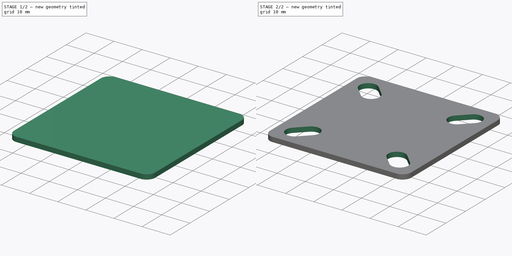
[diagram: build sequence overview — one tinted view per stage of 2, left to right]
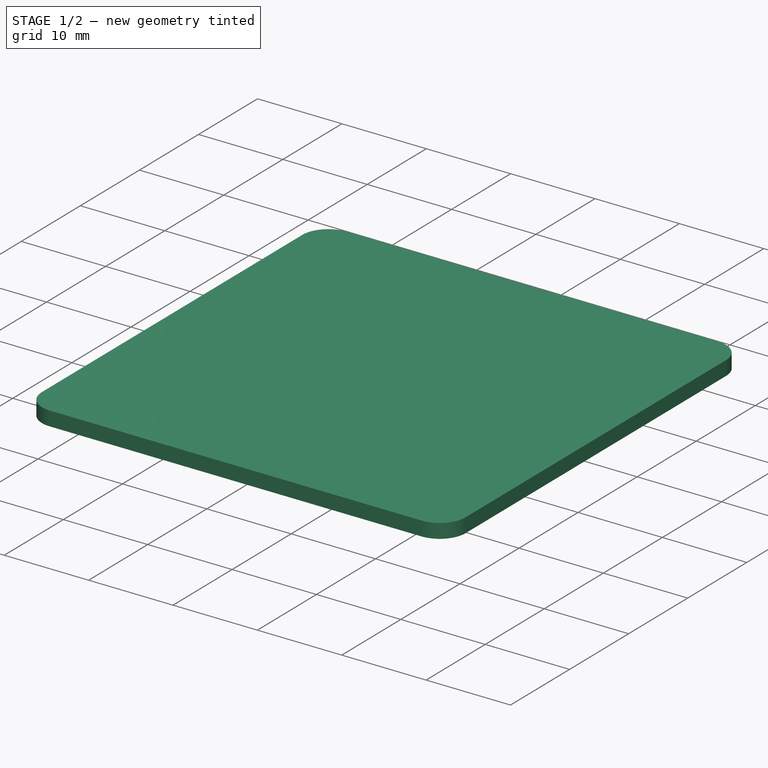
[diagram: stage 1 of 2 — iso view after this stage's code; geometry added in this stage tinted green]
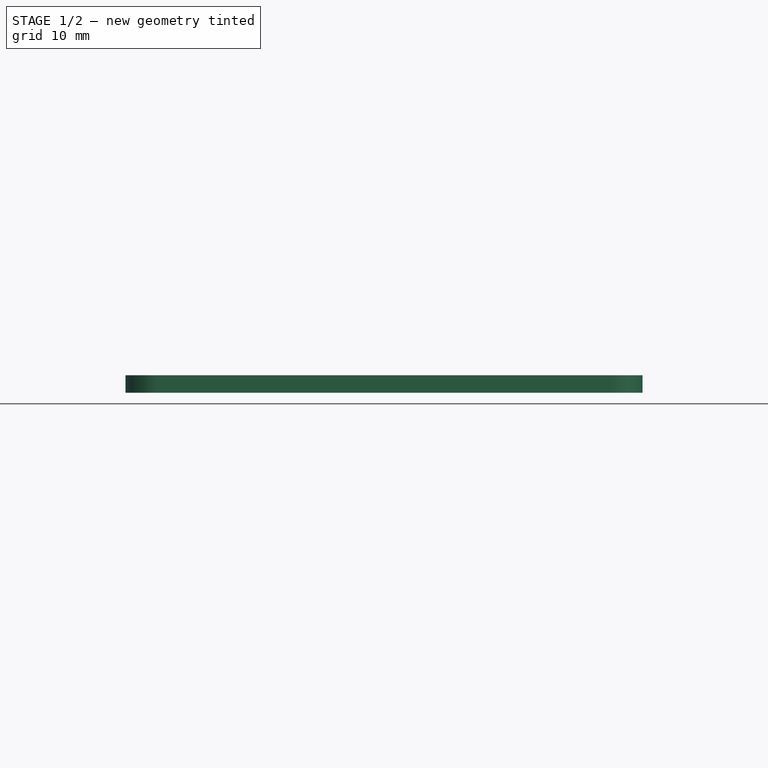
[diagram: stage 1 of 2 — front view after this stage's code; geometry added in this stage tinted green]
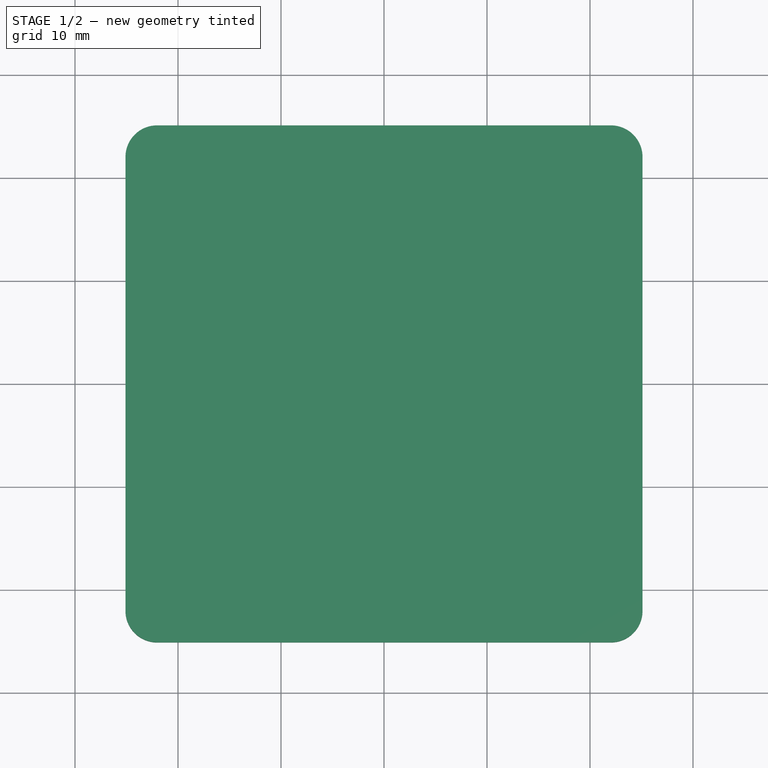
[diagram: stage 1 of 2 — top view after this stage's code; geometry added in this stage tinted green]
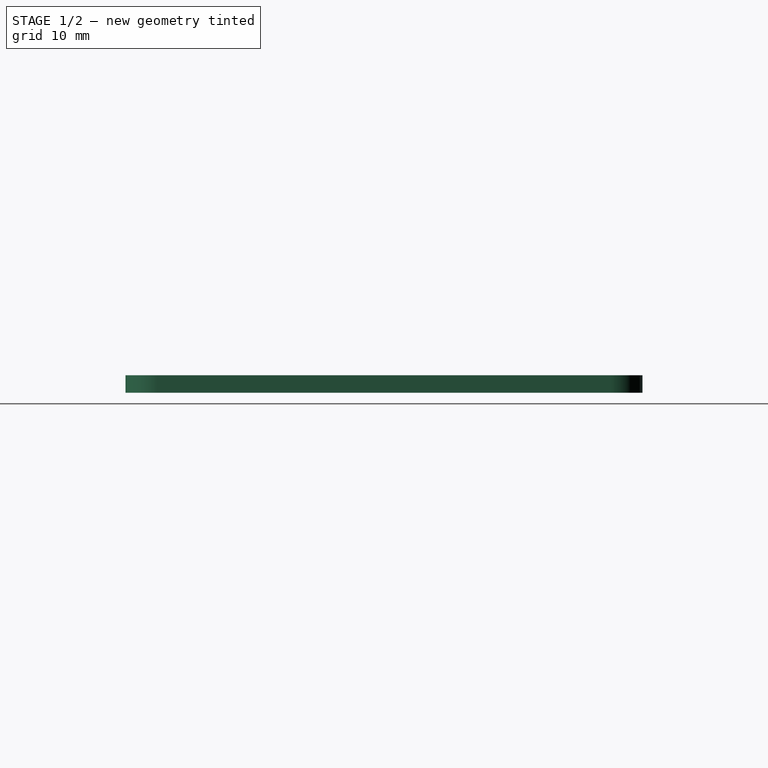
[diagram: stage 1 of 2 — right view after this stage's code; geometry added in this stage tinted green]
FCSTD DOCUMENT  (FreeCAD 1.1R38827 (Git))
Label: wheel50mm
License: All rights reserved
LicenseURL: http://en.wikipedia.org/wiki/All_rights_reserved
objects: Sketcher::SketchObject×4, Part::FeaturePython×3, Part::Part2DObjectPython×1, PartDesign::SubShapeBinder×1, PartDesign::Pad×1, PartDesign::Pocket×1, PartDesign::Body×1, TechDraw::DrawSVGTemplate×1, TechDraw::DrawViewPart×1, TechDraw::DrawPage×1
note: 20 computed .brp shape members not serialized (recipe doc carries the construction recipe); baked Part::Feature solids carry a one-line shape summary decoded from their .brp

FEATURE [Sketcher::SketchObject] Sketch
  ArcFitTolerance = 0
  FullyConstrained = true
  MakeInternals = false
  sketch-geometry (6):
    g0: ArcOfCircle CenterX=2.45 CenterY=0 CenterZ=0 NormalX=0 NormalY=0 NormalZ=1 AngleXU=0 Radius=3.05 StartAngle=4.71239 EndAngle=7.85398
    g1: ArcOfCircle CenterX=-2.45 CenterY=0 CenterZ=0 NormalX=0 NormalY=0 NormalZ=1 AngleXU=0 Radius=3.05 StartAngle=1.5708 EndAngle=4.71239
    g2: LineSegment StartX=2.45 StartY=3.05 StartZ=0 EndX=-2.45 EndY=3.05 EndZ=0
    g3: LineSegment StartX=-2.45 StartY=-3.05 StartZ=0 EndX=2.45 EndY=-3.05 EndZ=0
    g4: GeomPoint [constr] X=-5.5 Y=0 Z=0
    g5: GeomPoint [constr] X=5.5 Y=0 Z=0
  constraints (13):
    c: Tangent(g0,g2) = -1.5708
    c: Tangent(g2,g1) = -1.5708
    c: Tangent(g1,g3) = -1.5708
    c: Tangent(g3,g0) = -1.5708
    c: Equal(g0,g1)
    c: PointOnObject(g0,g-1)
    c: PointOnObject(g4,g1)
    c: DistanceY(g1,g1) = 6.1
    c: PointOnObject(g4,g-1)
    c: PointOnObject(g5,g0)
    c: PointOnObject(g5,g-1)
    c: DistanceX(g1,g0) = 4.9
    c: Symmetric(g1,g0,g-2)
FEATURE [Sketcher::SketchObject] Sketch001
  ArcFitTolerance = 0
  AttachmentSupport = -> [XY_Plane]
  FullyConstrained = true
  MakeInternals = false
  MapMode = 5
  sketch-geometry (13):
    g0: ArcOfCircle CenterX=-22.0297 CenterY=-22.0297 CenterZ=0 NormalX=0 NormalY=0 NormalZ=1 AngleXU=0 Radius=3.0703 StartAngle=3.14159 EndAngle=4.71239
    g1: LineSegment StartX=-25.1 StartY=-22.0297 StartZ=0 EndX=-25.1 EndY=22.0297 EndZ=0
    g2: ArcOfCircle CenterX=-22.0297 CenterY=22.0297 CenterZ=0 NormalX=0 NormalY=0 NormalZ=1 AngleXU=0 Radius=3.0703 StartAngle=1.5708 EndAngle=3.14159
    g3: LineSegment StartX=-22.0297 StartY=25.1 StartZ=0 EndX=22.0297 EndY=25.1 EndZ=0
    g4: ArcOfCircle CenterX=22.0297 CenterY=22.0297 CenterZ=0 NormalX=0 NormalY=0 NormalZ=1 AngleXU=0 Radius=3.0703 StartAngle=-5.95e-14 EndAngle=1.5708
    g5: LineSegment StartX=25.1 StartY=22.0297 StartZ=0 EndX=25.1 EndY=-22.0297 EndZ=0
    g6: ArcOfCircle CenterX=22.0297 CenterY=-22.0297 CenterZ=0 NormalX=0 NormalY=0 NormalZ=1 AngleXU=0 Radius=3.0703 StartAngle=4.71239 EndAngle=6.28319
    g7: LineSegment StartX=22.0297 StartY=-25.1 StartZ=0 EndX=-22.0297 EndY=-25.1 EndZ=0
    g8: GeomPoint [constr] X=-25.1 Y=-25.1 Z=0
    g9: GeomPoint [constr] X=25.1 Y=25.1 Z=0
    g10: GeomPoint [constr] X=24.2007 Y=24.2007 Z=0
    g11: GeomPoint [constr] X=-24.2007 Y=-24.2007 Z=0
    g12: LineSegment [constr] StartX=-25.1 StartY=-25.1 StartZ=0 EndX=25.1 EndY=25.1 EndZ=0
  constraints (29):
    c: Tangent(g0,g1) = 1.5708
    c: Tangent(g1,g2) = 1.5708
    c: Tangent(g2,g3) = 1.5708
    c: Tangent(g3,g4) = 1.5708
    c: Tangent(g4,g5) = 1.5708
    c: Tangent(g5,g6) = 1.5708
    c: Tangent(g6,g7) = 1.5708
    c: Tangent(g7,g0) = 1.5708
    c: Horizontal(g3)
    c: Horizontal(g7)
    c: Vertical(g1)
    c: Vertical(g5)
    c: Equal(g0,g2)
    c: Equal(g2,g4)
    c: Equal(g4,g6)
    c: PointOnObject(g8,g1)
    c: PointOnObject(g8,g7)
    c: PointOnObject(g9,g3)
    c: PointOnObject(g9,g5)
    c: Symmetric(g4,g0,g-1)
    c: Equal(g5,g3)
    c: DistanceY(g9) = 25.1
    c: PointOnObject(g10,g4)
    c: PointOnObject(g11,g0)
    c: Coincident(g12,g8)
    c: Coincident(g12,g9)
    c: PointOnObject(g11,g12)
    c: PointOnObject(g10,g12)
    c: Distance(g11,g10) = 68.45
FEATURE [Part::Part2DObjectPython] PolarArray  # Draft 2D object (typed FeaturePython)
  Alignment = 0
  AttacherType = Attacher::AttachEngine3D
  CellStart = A1
  Count = 4
  DistributionLaw = 0
  EndInclusive = false
  ExposePlacement = false
  FlipX = false
  FlipZ = false
  GeneratorMode = 0
  MarkerShape = 1
  MarkerSize = 0
  NumElements = 4
  OrientMode = 2
  Placement = pos=(0,0,0) rot=(0,0,1;0.785398rad)
  Radius = 24
  Reverse = false
  SpanEnd = 360
  SpanStart = 0
  Step = 90
  Type = lattice2PolarArray2.PolarArray
  UseArcRadius = false
  UseArcRange = 0
  VSGVersion = 1
  Values = 0.0 | 90.0 | 180.0 | 270.0
  ValuesSource = 2
  isLattice = 1
  expr: Radius = (18.5 + 29.5) / 2
FEATURE [Part::FeaturePython] Populate  label="slot"  # WARN: FeaturePython — macro-defined, semantics opaque (R4)
  Copying = 0
  ExposePlacement = false
  MarkerShape = 1
  MarkerSize = 0
  NumElements = 0
  Object = -> Sketch
  OutputCompounding = 1
  PlacementsTo = -> PolarArray
  Referencing = 0
  Type = lattice2PopulateCopies.LatticePopulateCopies
  isLattice = 0
FEATURE [PartDesign::SubShapeBinder] Binder
  BindCopyOnChange = 0
  BindMode = 0
  ClaimChildren = false
  Context = -> Body [Binder.]
  Fuse = false
  MakeFace = true
  OffsetFill = false
  OffsetIntersection = false
  OffsetJoinType = 0
  OffsetOpenResult = false
  PartialLoad = false
  Relative = true
  Support = -> [Populate]
  _Version = 2
FEATURE [PartDesign::Pad] Pad
  Direction = (0,0,1)
  Length = 1.7
  Length2 = 10
  Profile = -> Sketch001
  ReferenceAxis = -> Sketch001 [N_Axis]
  Suppressed = false
  Type = 0
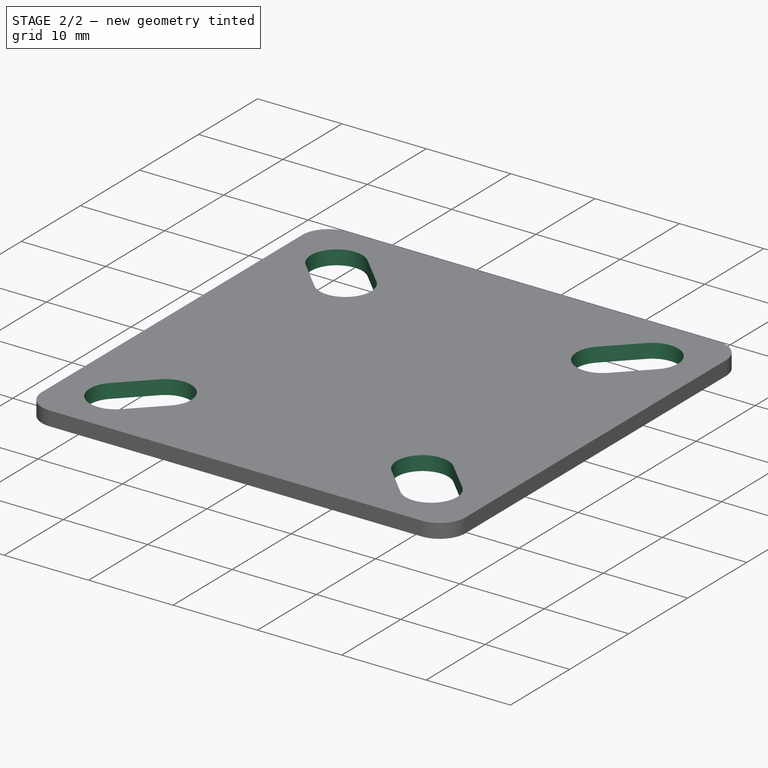
[diagram: stage 2 of 2 — iso view after this stage's code; geometry added in this stage tinted green]
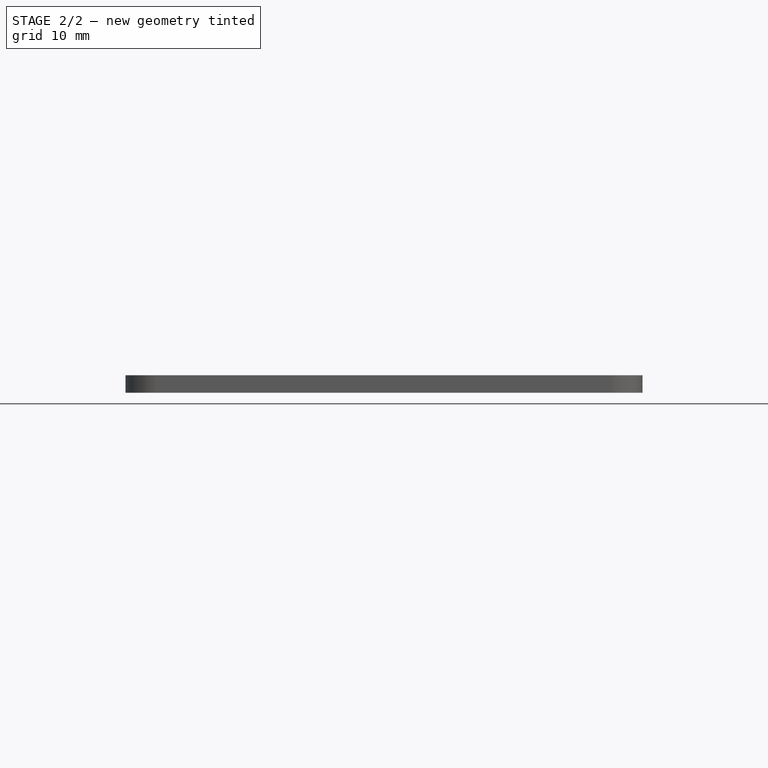
[diagram: stage 2 of 2 — front view after this stage's code; geometry added in this stage tinted green]
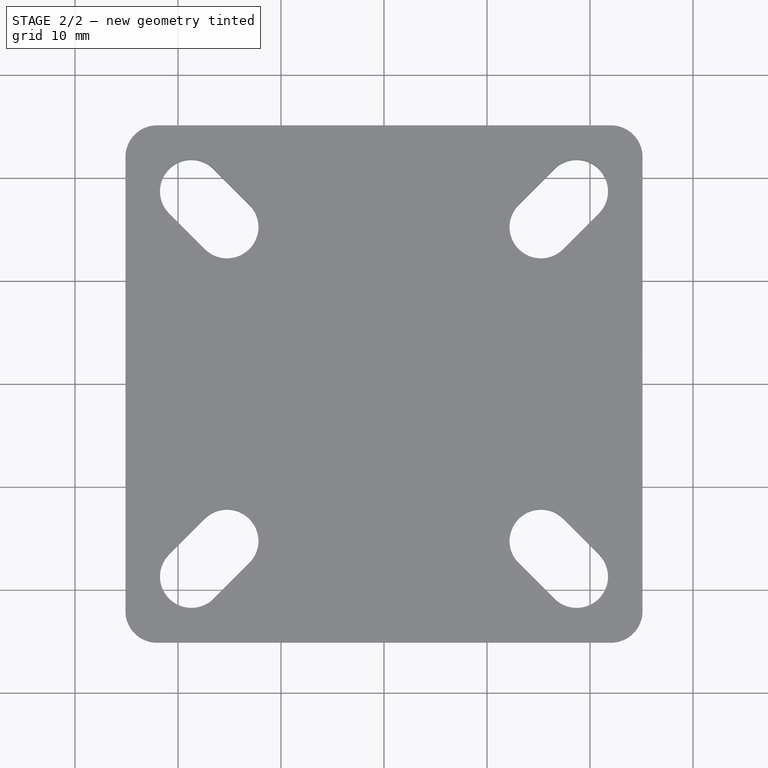
[diagram: stage 2 of 2 — top view after this stage's code; geometry added in this stage tinted green]
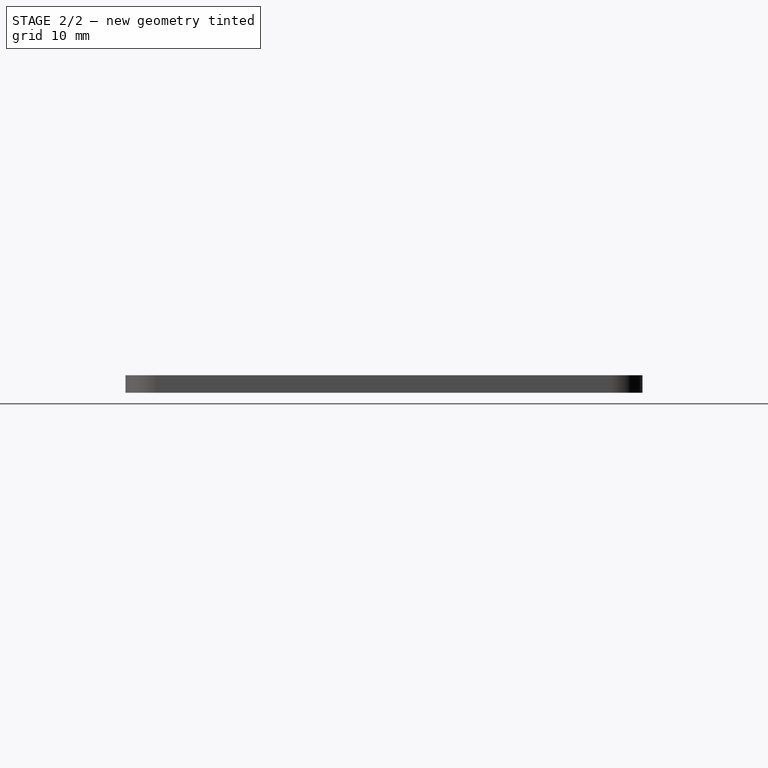
[diagram: stage 2 of 2 — right view after this stage's code; geometry added in this stage tinted green]
FEATURE [PartDesign::Pocket] Pocket
  BaseFeature = -> Pad
  Direction = (0,0,-1)
  Length = 5
  Length2 = 5
  Midplane = true
  Profile = -> Binder
  Suppressed = false
  Type = 1
FEATURE [PartDesign::Body] Body  label="Body_material_0.30ansi"
  AllowCompound = false
  Group = -> [Sketch001,Binder,Pad,Pocket]
  Origin = -> Origin
  Tip = -> Pocket
FEATURE [Sketcher::SketchObject] Sketch002
  ArcFitTolerance = 0
  FullyConstrained = true
  MakeInternals = false
  sketch-geometry (1):
    g0: Circle CenterX=2.3 CenterY=0 CenterZ=0 NormalX=0 NormalY=0 NormalZ=1 AngleXU=0 Radius=3.1
  constraints (3):
    c: PointOnObject(g0,g-1)
    c: Diameter(g0) = 6.2
    c: DistanceX(g0) = 2.3
FEATURE [Part::FeaturePython] Populate001  label="holes_max"  # WARN: FeaturePython — macro-defined, semantics opaque (R4)
  Copying = 0
  ExposePlacement = false
  MarkerShape = 1
  MarkerSize = 0
  NumElements = 0
  Object = -> Sketch002
  OutputCompounding = 1
  PlacementsTo = -> PolarArray
  Referencing = 0
  Type = lattice2PopulateCopies.LatticePopulateCopies
  isLattice = 0
FEATURE [Sketcher::SketchObject] Sketch003
  ArcFitTolerance = 0
  FullyConstrained = true
  MakeInternals = false
  expr: Constraints[1] = Sketch002.Constraints[1]
  sketch-geometry (1):
    g0: Circle CenterX=-2.4 CenterY=0 CenterZ=0 NormalX=0 NormalY=0 NormalZ=1 AngleXU=0 Radius=3.1
  constraints (3):
    c: PointOnObject(g0,g-1)
    c: Diameter(g0) = 6.2
    c: DistanceX(g0) = -2.4
FEATURE [Part::FeaturePython] Populate002  label="holes_mix"  # WARN: FeaturePython — macro-defined, semantics opaque (R4)
  Copying = 0
  ExposePlacement = false
  MarkerShape = 1
  MarkerSize = 0
  NumElements = 0
  Object = -> Sketch003
  OutputCompounding = 1
  PlacementsTo = -> PolarArray
  Referencing = 0
  Type = lattice2PopulateCopies.LatticePopulateCopies
  isLattice = 0
FEATURE [TechDraw::DrawSVGTemplate] Template
  EditableTexts = Designed_by_Name=Designed by Name; Drawing_number=Drawing number; FC-Date=Date; FC-SC=Scale; FC-SH=Sheet; FC-Title=Title; Subtitle=Subtitle; Weight=Weight
  Height = 210
  Orientation = 1
  Template = <path>
  Width = 297
FEATURE [TechDraw::DrawViewPart] View
  CoarseView = false
  Direction = (0,0,1)
  Focus = 100
  HardHidden = false
  IsoCount = 0
  IsoHidden = false
  IsoVisible = false
  LockPosition = false
  Perspective = false
  Rotation = 0
  ScaleType = 0
  ScrubCount = 0
  SeamHidden = false
  SeamVisible = true
  SmoothHidden = false
  SmoothVisible = true
  X = 148.5
  XDirection = (1,0,0)
  Y = 105
FEATURE [TechDraw::DrawPage] Page
  KeepUpdated = true
  NextBalloonIndex = 1
  ProjectionType = 0
  Template = -> Template
  Views = -> [View]
note: 1 file-system path scrubbed to <path> (originals preserved in the JSON sidecar)
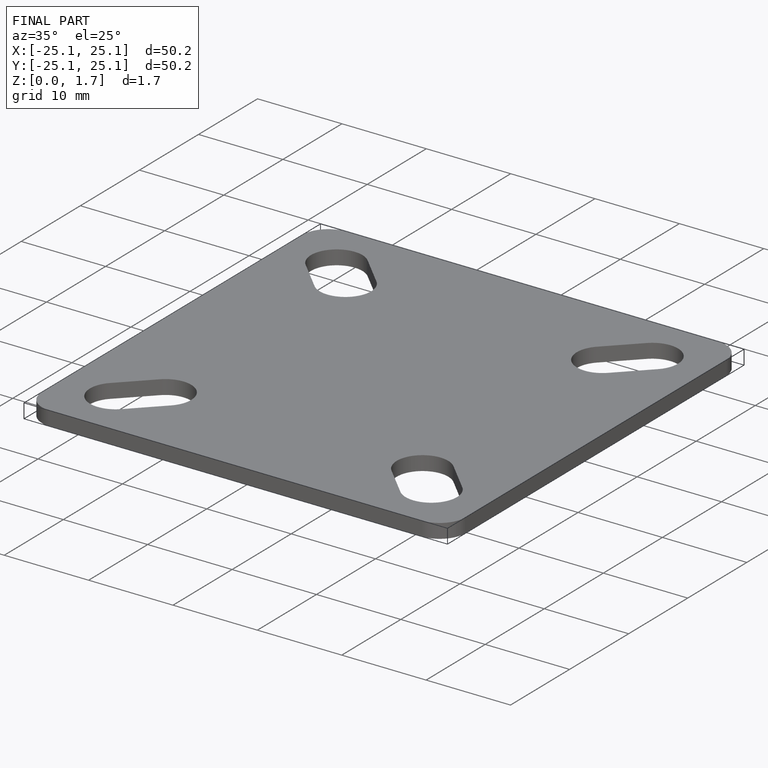
[diagram: finished part — iso view with bounding-box wireframe]
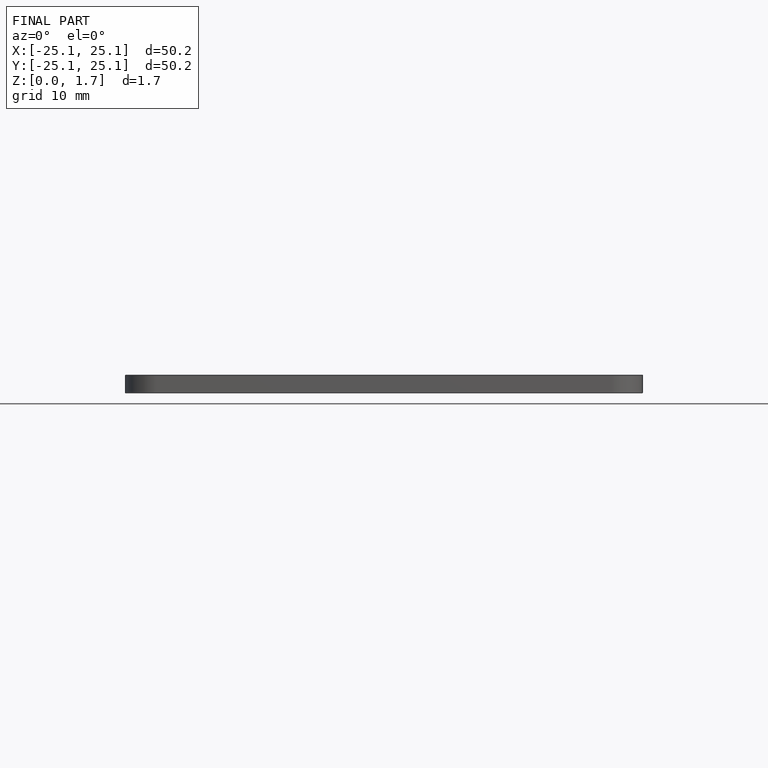
[diagram: finished part — front view with bounding-box wireframe]
